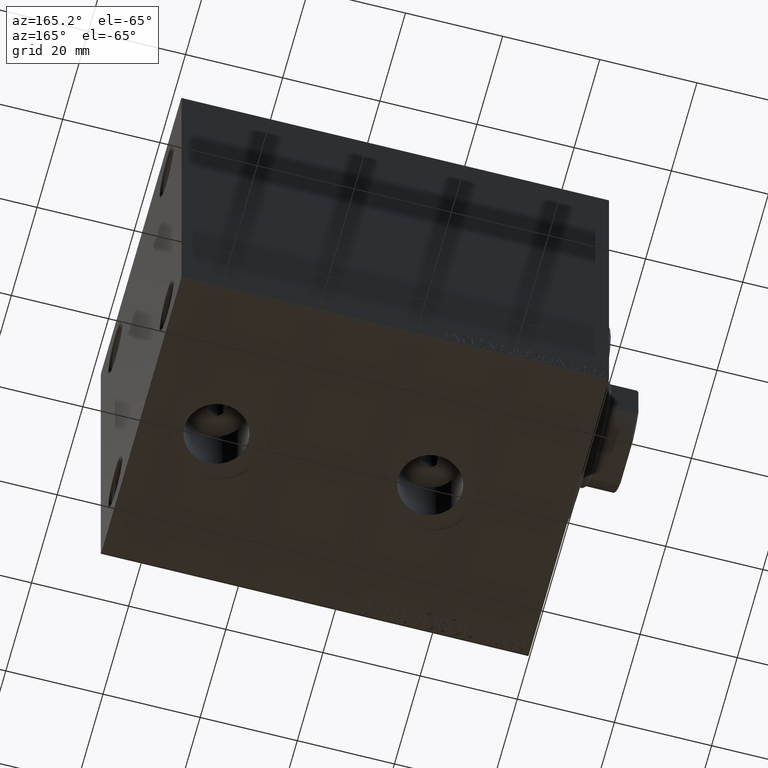
[diagram: clean part render]
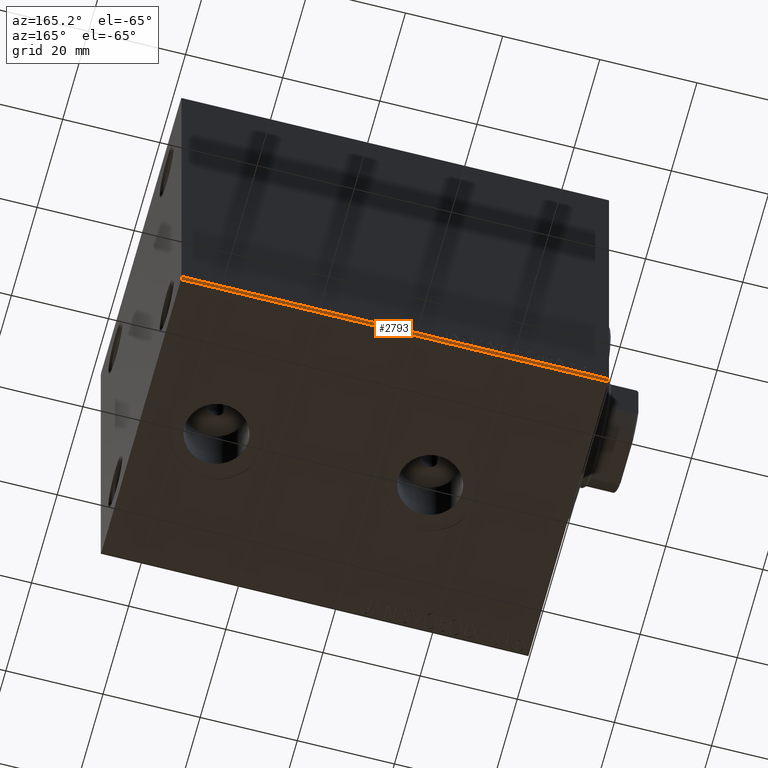
[diagram: same view with one face highlighted and labeled with its STEP entity id]
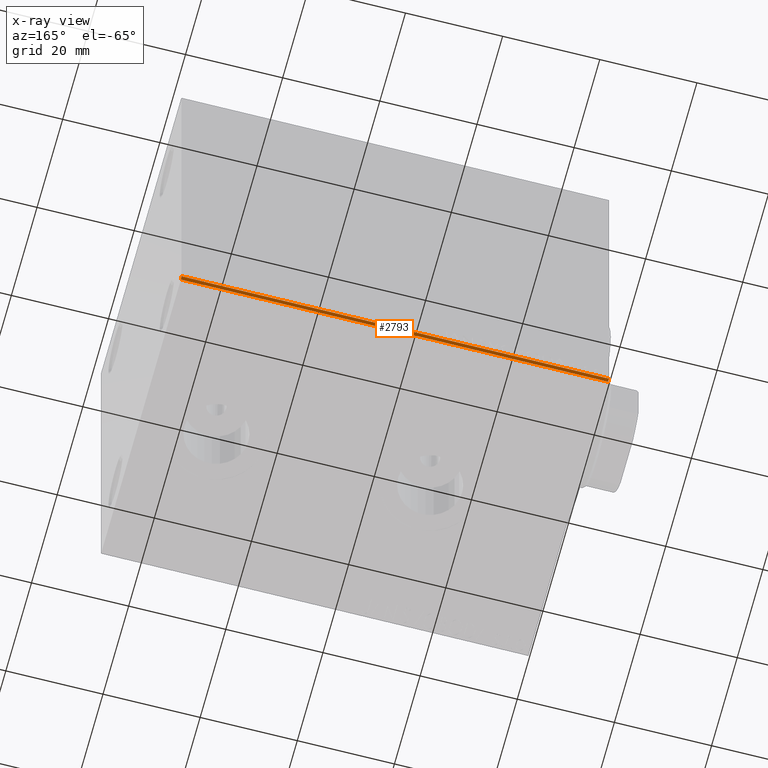
[diagram: x-ray of the same camera — body ghosted, the highlighted face saturated]
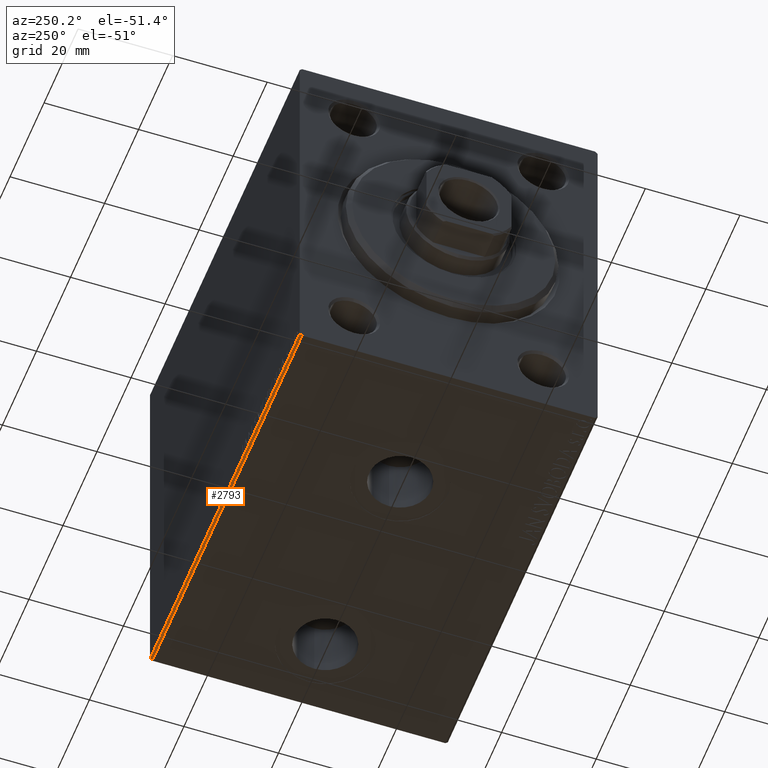
[diagram: same view with one face highlighted and labeled with its STEP entity id]
A machine part, auxiliary view. The second image highlights one B-rep face of the part: STEP entity #2793.
The next image is the same camera in x-ray: the body ghosted, the highlighted face saturated — about 0% of this face is hidden behind the body in this view.
A second angle (auxiliary view) of the same face is appended — the face is thin or edge-on in the first view.
In plain terms, the highlighted planar face has unit normal (0, -0.7071, 0.7071).
Its self-contained STEP definition (entity closure, byte-faithful):
#2793 = ADVANCED_FACE ( 'NONE', ( #35235 ), #31425, .F. ) ;
#4351 = VERTEX_POINT ( 'NONE', #36369 ) ;
#4664 = ORIENTED_EDGE ( 'NONE', *, *, #5664, .F. ) ;
#5480 = EDGE_CURVE ( 'NONE', #15410, #4351, #39354, .T. ) ;
#5664 = EDGE_CURVE ( 'NONE', #4351, #13945, #42010, .T. ) ;
#5810 = LINE ( 'NONE', #19491, #14551 ) ;
#6876 = VECTOR ( 'NONE', #9325, 1000.000000000000000 ) ;
#7779 = VECTOR ( 'NONE', #10411, 1000.000000000000000 ) ;
#7919 = CARTESIAN_POINT ( 'NONE',  ( 88.00000000000000000, 31.50000000000001421, -42.00000000000003553 ) ) ;
#8408 = CARTESIAN_POINT ( 'NONE',  ( 88.00000000000000000, 36.75000000000002842, -36.75000000000002842 ) ) ;
#9325 = DIRECTION ( 'NONE',  ( 1.000000000000000000, 0.000000000000000000, 0.000000000000000000 ) ) ;
#10411 = DIRECTION ( 'NONE',  ( -1.000000000000000000, 0.000000000000000000, 0.000000000000000000 ) ) ;
#11991 = AXIS2_PLACEMENT_3D ( 'NONE', #17761, #15046, #21118 ) ;
#13115 = ORIENTED_EDGE ( 'NONE', *, *, #15720, .F. ) ;
#13945 = VERTEX_POINT ( 'NONE', #37348 ) ;
#14225 = VECTOR ( 'NONE', #33055, 1000.000000000000114 ) ;
#14551 = VECTOR ( 'NONE', #32513, 1000.000000000000114 ) ;
#15046 = DIRECTION ( 'NONE',  ( 0.000000000000000000, -0.7071067811865475727, 0.7071067811865475727 ) ) ;
#15410 = VERTEX_POINT ( 'NONE', #28316 ) ;
#15720 = EDGE_CURVE ( 'NONE', #13945, #18613, #5810, .T. ) ;
#17761 = CARTESIAN_POINT ( 'NONE',  ( 88.00000000000000000, 31.50000000000001421, -42.00000000000003553 ) ) ;
#18613 = VERTEX_POINT ( 'NONE', #19857 ) ;
#19491 = CARTESIAN_POINT ( 'NONE',  ( 0.000000000000000000, 31.50000000000001421, -42.00000000000003553 ) ) ;
#19857 = CARTESIAN_POINT ( 'NONE',  ( 0.000000000000000000, 31.00000000000004263, -42.50000000000000711 ) ) ;
#21118 = DIRECTION ( 'NONE',  ( -1.000000000000000000, 0.000000000000000000, 0.000000000000000000 ) ) ;
#21666 = EDGE_LOOP ( 'NONE', ( #33696, #35100, #13115, #4664 ) ) ;
#26350 = CARTESIAN_POINT ( 'NONE',  ( 88.00000000000000000, 31.00000000000004263, -42.50000000000000711 ) ) ;
#28316 = CARTESIAN_POINT ( 'NONE',  ( 88.00000000000000000, 31.00000000000004263, -42.50000000000000711 ) ) ;
#31425 = PLANE ( 'NONE',  #11991 ) ;
#32513 = DIRECTION ( 'NONE',  ( 0.000000000000000000, -0.7071067811865474617, -0.7071067811865474617 ) ) ;
#33055 = DIRECTION ( 'NONE',  ( -0.000000000000000000, 0.7071067811865474617, 0.7071067811865474617 ) ) ;
#33696 = ORIENTED_EDGE ( 'NONE', *, *, #5480, .F. ) ;
#33755 = LINE ( 'NONE', #26350, #6876 ) ;
#34799 = EDGE_CURVE ( 'NONE', #18613, #15410, #33755, .T. ) ;
#35100 = ORIENTED_EDGE ( 'NONE', *, *, #34799, .F. ) ;
#35235 = FACE_OUTER_BOUND ( 'NONE', #21666, .T. ) ;
#36369 = CARTESIAN_POINT ( 'NONE',  ( 88.00000000000000000, 31.50000000000001421, -42.00000000000003553 ) ) ;
#37348 = CARTESIAN_POINT ( 'NONE',  ( 0.000000000000000000, 31.50000000000001421, -42.00000000000003553 ) ) ;
#39354 = LINE ( 'NONE', #8408, #14225 ) ;
#42010 = LINE ( 'NONE', #7919, #7779 ) ;